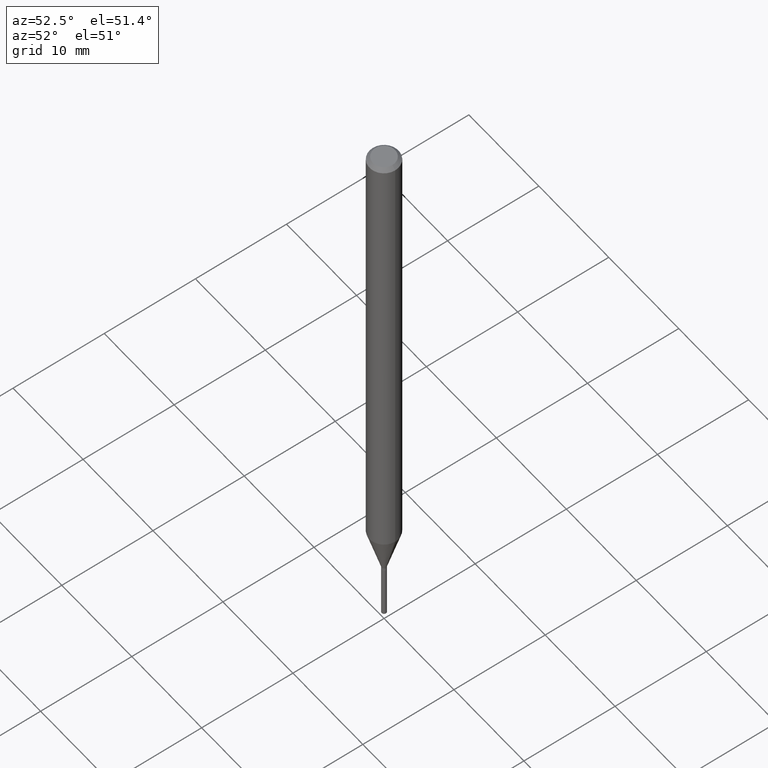
[diagram: clean part render]
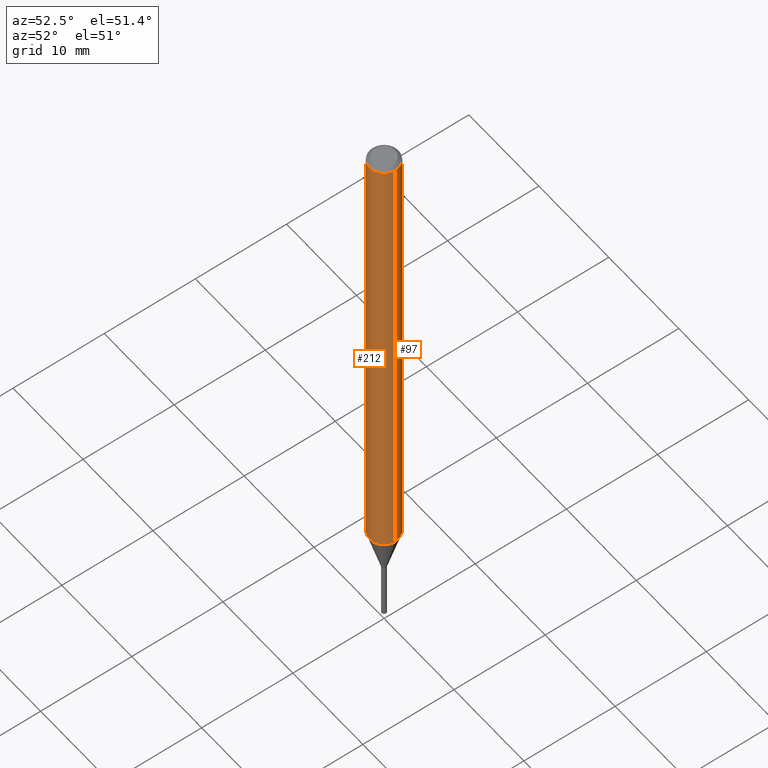
[diagram: same view with one multi-face feature highlighted, each face labeled with its STEP entity id]
A machine part, auxiliary view. The highlighted faces form ONE feature: a constant-radius fillet chain: 2 tangent blend faces with common blend radius 1.5875 mm. The faces share edges in the B-rep.
Their STEP definitions:
[1] entity #212 (Cylinder):
#10 = CARTESIAN_POINT ( 'NONE',  ( 5.023157587683648864E-29, -7.171737760509410545E-15, -2.054067332602632856 ) ) ;
#21 = EDGE_CURVE ( 'NONE', #277, #402, #164, .T. ) ;
#50 = DIRECTION ( 'NONE',  ( -2.445468806185136597E-29, 3.491481338843145583E-15, 1.000000000000000000 ) ) ;
#55 = CIRCLE ( 'NONE', #118, 0.06250000000000000000 ) ;
#68 = VERTEX_POINT ( 'NONE', #413 ) ;
#84 = CARTESIAN_POINT ( 'NONE',  ( 3.668203209277705088E-31, -5.237222008264718399E-17, -0.01499999999999999944 ) ) ;
#91 = CARTESIAN_POINT ( 'NONE',  ( -0.06250000000000000000, -3.167965780445966393E-15, -0.01499999999999999944 ) ) ;
#94 = FACE_OUTER_BOUND ( 'NONE', #245, .T. ) ;
#118 = AXIS2_PLACEMENT_3D ( 'NONE', #10, #448, #231 ) ;
#131 = LINE ( 'NONE', #273, #171 ) ;
#133 = AXIS2_PLACEMENT_3D ( 'NONE', #237, #137, #173 ) ;
#134 = EDGE_CURVE ( 'NONE', #68, #402, #338, .T. ) ;
#137 = DIRECTION ( 'NONE',  ( -2.445468806185136597E-29, 3.491481338843145583E-15, 1.000000000000000000 ) ) ;
#139 = EDGE_CURVE ( 'NONE', #466, #68, #55, .T. ) ;
#164 = CIRCLE ( 'NONE', #380, 0.06250000000000000000 ) ;
#171 = VECTOR ( 'NONE', #234, 39.37007874015748143 ) ;
#173 = DIRECTION ( 'NONE',  ( 1.000000000000000000, -6.982962677686266711E-15, 4.876176775795935793E-29 ) ) ;
#198 = DIRECTION ( 'NONE',  ( 1.000000000000000000, -6.982962677686266711E-15, 0.000000000000000000 ) ) ;
#212 = ADVANCED_FACE ( 'NONE', ( #94 ), #421, .T. ) ;
#231 = DIRECTION ( 'NONE',  ( 1.000000000000000000, -6.982962677686262766E-15, 0.000000000000000000 ) ) ;
#234 = DIRECTION ( 'NONE',  ( -2.445468806185136877E-29, 3.491481338843145188E-15, 1.000000000000000000 ) ) ;
#237 = CARTESIAN_POINT ( 'NONE',  ( 0.000000000000000000, 0.000000000000000000, 0.000000000000000000 ) ) ;
#245 = EDGE_LOOP ( 'NONE', ( #433, #251, #253, #437 ) ) ;
#251 = ORIENTED_EDGE ( 'NONE', *, *, #139, .T. ) ;
#253 = ORIENTED_EDGE ( 'NONE', *, *, #134, .T. ) ;
#270 = VECTOR ( 'NONE', #376, 39.37007874015748143 ) ;
#273 = CARTESIAN_POINT ( 'NONE',  ( -0.06250000000000000000, 4.440892098500626162E-16, -3.074334431409316114E-30 ) ) ;
#277 = VERTEX_POINT ( 'NONE', #91 ) ;
#294 = EDGE_CURVE ( 'NONE', #466, #277, #131, .T. ) ;
#320 = CARTESIAN_POINT ( 'NONE',  ( 0.06250000000000000000, -4.888073874380388472E-16, -0.01499999999999999944 ) ) ;
#338 = LINE ( 'NONE', #408, #270 ) ;
#350 = CARTESIAN_POINT ( 'NONE',  ( -0.06250000000000000000, -6.727648550659347140E-15, -2.054067332602632856 ) ) ;
#376 = DIRECTION ( 'NONE',  ( -2.445468806185136877E-29, 3.491481338843145188E-15, 1.000000000000000000 ) ) ;
#380 = AXIS2_PLACEMENT_3D ( 'NONE', #84, #50, #198 ) ;
#402 = VERTEX_POINT ( 'NONE', #320 ) ;
#408 = CARTESIAN_POINT ( 'NONE',  ( 0.06250000000000000000, -4.364351673553916694E-16, 3.047610484872459871E-30 ) ) ;
#413 = CARTESIAN_POINT ( 'NONE',  ( 0.06250000000000000000, -7.608172927864802215E-15, -2.054067332602632856 ) ) ;
#421 = CYLINDRICAL_SURFACE ( 'NONE', #133, 0.06250000000000000000 ) ;
#433 = ORIENTED_EDGE ( 'NONE', *, *, #294, .F. ) ;
#437 = ORIENTED_EDGE ( 'NONE', *, *, #21, .F. ) ;
#448 = DIRECTION ( 'NONE',  ( -2.445468806185136597E-29, 3.491481338843145583E-15, 1.000000000000000000 ) ) ;
#466 = VERTEX_POINT ( 'NONE', #350 ) ;
[2] entity #97 (Cylinder):
#1 = ORIENTED_EDGE ( 'NONE', *, *, #416, .F. ) ;
#35 = DIRECTION ( 'NONE',  ( -2.445468806185136597E-29, 3.491481338843145583E-15, 1.000000000000000000 ) ) ;
#68 = VERTEX_POINT ( 'NONE', #413 ) ;
#69 = AXIS2_PLACEMENT_3D ( 'NONE', #295, #193, #332 ) ;
#91 = CARTESIAN_POINT ( 'NONE',  ( -0.06250000000000000000, -3.167965780445966393E-15, -0.01499999999999999944 ) ) ;
#97 = ADVANCED_FACE ( 'NONE', ( #297 ), #336, .T. ) ;
#99 = ORIENTED_EDGE ( 'NONE', *, *, #294, .T. ) ;
#101 = AXIS2_PLACEMENT_3D ( 'NONE', #399, #327, #426 ) ;
#108 = DIRECTION ( 'NONE',  ( 1.000000000000000000, -6.982962677686262766E-15, 0.000000000000000000 ) ) ;
#126 = CIRCLE ( 'NONE', #101, 0.06250000000000000000 ) ;
#131 = LINE ( 'NONE', #273, #171 ) ;
#134 = EDGE_CURVE ( 'NONE', #68, #402, #338, .T. ) ;
#171 = VECTOR ( 'NONE', #234, 39.37007874015748143 ) ;
#193 = DIRECTION ( 'NONE',  ( -2.445468806185136597E-29, 3.491481338843145583E-15, 1.000000000000000000 ) ) ;
#220 = AXIS2_PLACEMENT_3D ( 'NONE', #432, #35, #108 ) ;
#234 = DIRECTION ( 'NONE',  ( -2.445468806185136877E-29, 3.491481338843145188E-15, 1.000000000000000000 ) ) ;
#270 = VECTOR ( 'NONE', #376, 39.37007874015748143 ) ;
#273 = CARTESIAN_POINT ( 'NONE',  ( -0.06250000000000000000, 4.440892098500626162E-16, -3.074334431409316114E-30 ) ) ;
#277 = VERTEX_POINT ( 'NONE', #91 ) ;
#294 = EDGE_CURVE ( 'NONE', #466, #277, #131, .T. ) ;
#295 = CARTESIAN_POINT ( 'NONE',  ( 0.000000000000000000, 0.000000000000000000, 0.000000000000000000 ) ) ;
#297 = FACE_OUTER_BOUND ( 'NONE', #457, .T. ) ;
#320 = CARTESIAN_POINT ( 'NONE',  ( 0.06250000000000000000, -4.888073874380388472E-16, -0.01499999999999999944 ) ) ;
#323 = ORIENTED_EDGE ( 'NONE', *, *, #134, .F. ) ;
#327 = DIRECTION ( 'NONE',  ( -2.445468806185136597E-29, 3.491481338843145583E-15, 1.000000000000000000 ) ) ;
#332 = DIRECTION ( 'NONE',  ( 1.000000000000000000, -6.982962677686266711E-15, 4.876176775795935793E-29 ) ) ;
#336 = CYLINDRICAL_SURFACE ( 'NONE', #69, 0.06250000000000000000 ) ;
#338 = LINE ( 'NONE', #408, #270 ) ;
#350 = CARTESIAN_POINT ( 'NONE',  ( -0.06250000000000000000, -6.727648550659347140E-15, -2.054067332602632856 ) ) ;
#376 = DIRECTION ( 'NONE',  ( -2.445468806185136877E-29, 3.491481338843145188E-15, 1.000000000000000000 ) ) ;
#395 = CIRCLE ( 'NONE', #220, 0.06250000000000000000 ) ;
#399 = CARTESIAN_POINT ( 'NONE',  ( 3.668203209277705088E-31, -5.237222008264718399E-17, -0.01499999999999999944 ) ) ;
#402 = VERTEX_POINT ( 'NONE', #320 ) ;
#408 = CARTESIAN_POINT ( 'NONE',  ( 0.06250000000000000000, -4.364351673553916694E-16, 3.047610484872459871E-30 ) ) ;
#413 = CARTESIAN_POINT ( 'NONE',  ( 0.06250000000000000000, -7.608172927864802215E-15, -2.054067332602632856 ) ) ;
#416 = EDGE_CURVE ( 'NONE', #402, #277, #126, .T. ) ;
#426 = DIRECTION ( 'NONE',  ( 1.000000000000000000, -6.982962677686266711E-15, 0.000000000000000000 ) ) ;
#430 = ORIENTED_EDGE ( 'NONE', *, *, #458, .T. ) ;
#432 = CARTESIAN_POINT ( 'NONE',  ( 5.023157587683648864E-29, -7.171737760509410545E-15, -2.054067332602632856 ) ) ;
#457 = EDGE_LOOP ( 'NONE', ( #430, #99, #1, #323 ) ) ;
#458 = EDGE_CURVE ( 'NONE', #68, #466, #395, .T. ) ;
#466 = VERTEX_POINT ( 'NONE', #350 ) ;